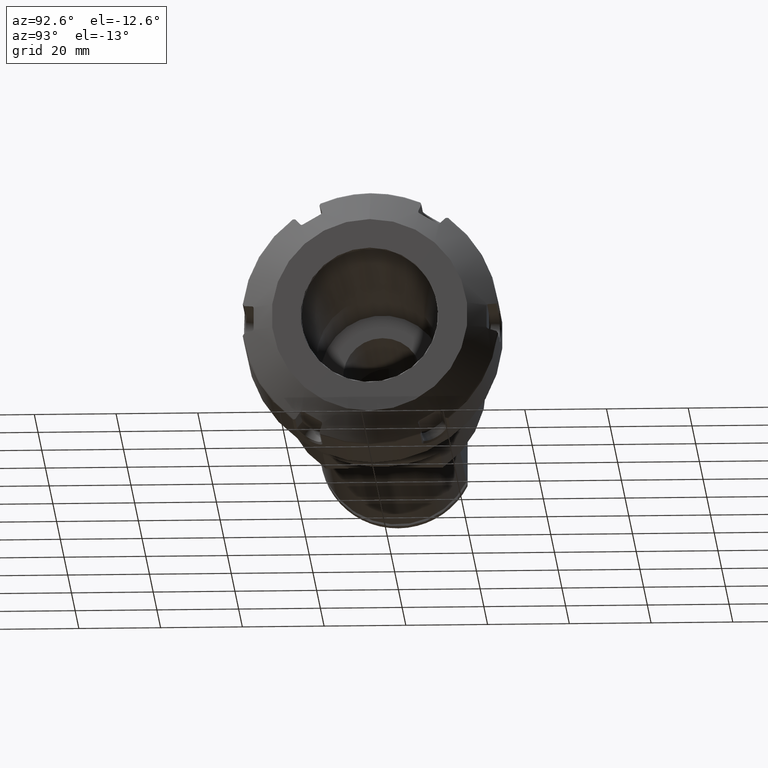
[diagram: clean part render]
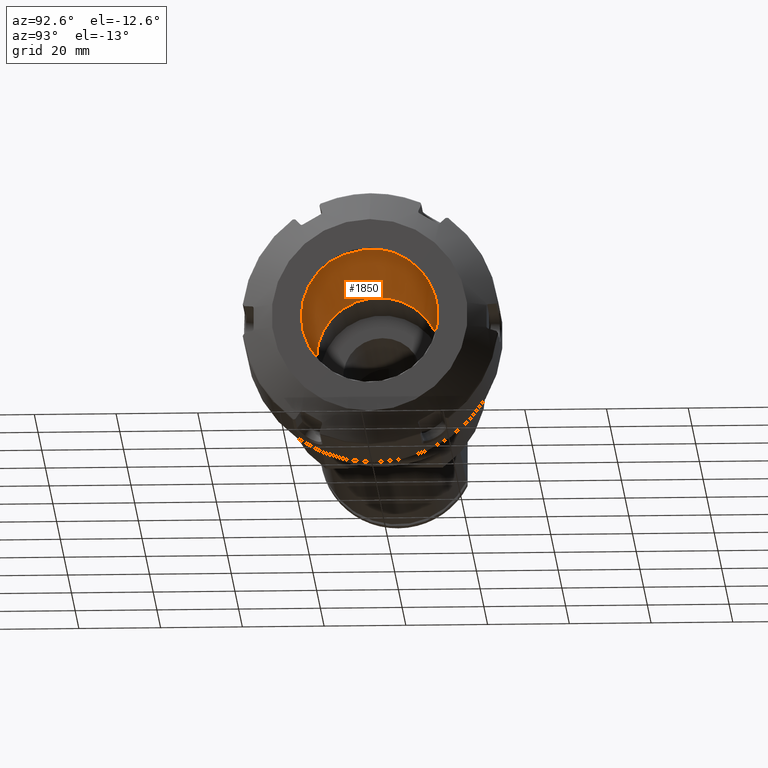
[diagram: same view with one face highlighted and labeled with its STEP entity id]
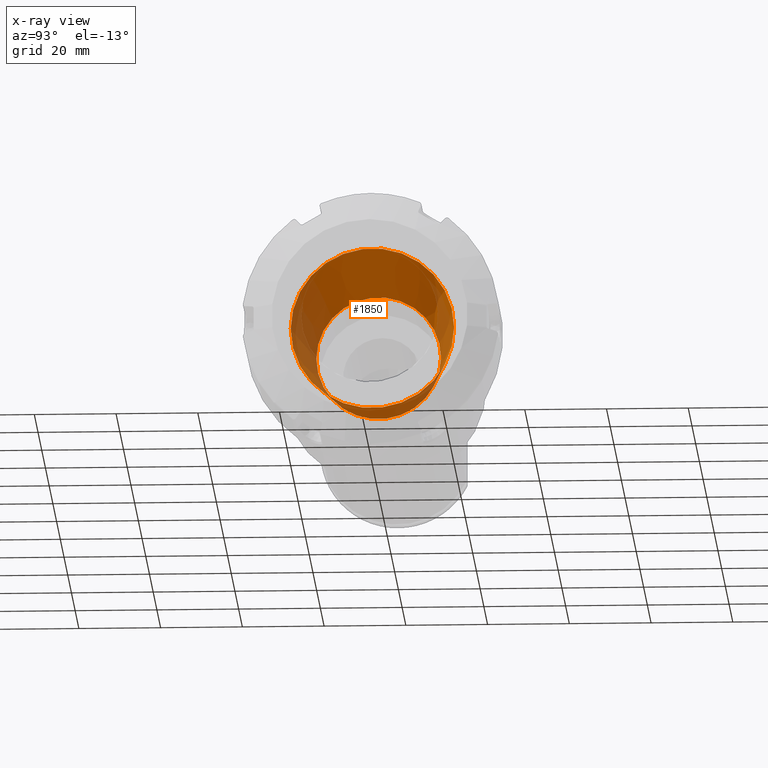
[diagram: x-ray of the same camera — body ghosted, the highlighted face saturated]
A machine part, auxiliary view. The second image highlights one B-rep face of the part: STEP entity #1850.
The next image is the same camera in x-ray: the body ghosted, the highlighted face saturated — about 23% of this face is hidden behind the body in this view.
In plain terms, the highlighted conical surface has half-angle 8 deg.
Its self-contained STEP definition (entity closure, byte-faithful):
#135=CONICAL_SURFACE('',#2064,17.625,0.139626340159547);
#276=CIRCLE('',#2063,20.);
#277=CIRCLE('',#2065,15.25);
#360=FACE_OUTER_BOUND('',#473,.T.);
#473=EDGE_LOOP('',(#1352,#1353,#1354,#1355));
#598=LINE('',#2865,#712);
#712=VECTOR('',#2346,17.625);
#837=VERTEX_POINT('',#2861);
#838=VERTEX_POINT('',#2864);
#1027=EDGE_CURVE('',#837,#837,#276,.T.);
#1028=EDGE_CURVE('',#837,#838,#598,.T.);
#1029=EDGE_CURVE('',#838,#838,#277,.T.);
#1352=ORIENTED_EDGE('',*,*,#1027,.T.);
#1353=ORIENTED_EDGE('',*,*,#1028,.T.);
#1354=ORIENTED_EDGE('',*,*,#1029,.F.);
#1355=ORIENTED_EDGE('',*,*,#1028,.F.);
#1850=ADVANCED_FACE('',(#360),#135,.F.);
#2063=AXIS2_PLACEMENT_3D('',#2862,#2342,#2343);
#2064=AXIS2_PLACEMENT_3D('',#2863,#2344,#2345);
#2065=AXIS2_PLACEMENT_3D('',#2866,#2347,#2348);
#2342=DIRECTION('center_axis',(1.,0.,0.));
#2343=DIRECTION('ref_axis',(0.,0.,-1.));
#2344=DIRECTION('center_axis',(1.,0.,0.));
#2345=DIRECTION('ref_axis',(0.,1.,0.));
#2346=DIRECTION('',(-0.99026806874157,0.139173100960066,1.70437892618156E-17));
#2347=DIRECTION('center_axis',(1.,0.,0.));
#2348=DIRECTION('ref_axis',(0.,0.,-1.));
#2861=CARTESIAN_POINT('',(0.,-20.,-2.44929359829471E-15));
#2862=CARTESIAN_POINT('Origin',(0.,0.,0.));
#2863=CARTESIAN_POINT('Origin',(-16.8990030906625,0.,0.));
#2864=CARTESIAN_POINT('',(-33.7980061813249,-15.25,-1.86758636869971E-15));
#2865=CARTESIAN_POINT('',(-16.8990030906625,-17.625,-2.15843998349721E-15));
#2866=CARTESIAN_POINT('Origin',(-33.7980061813249,0.,0.));